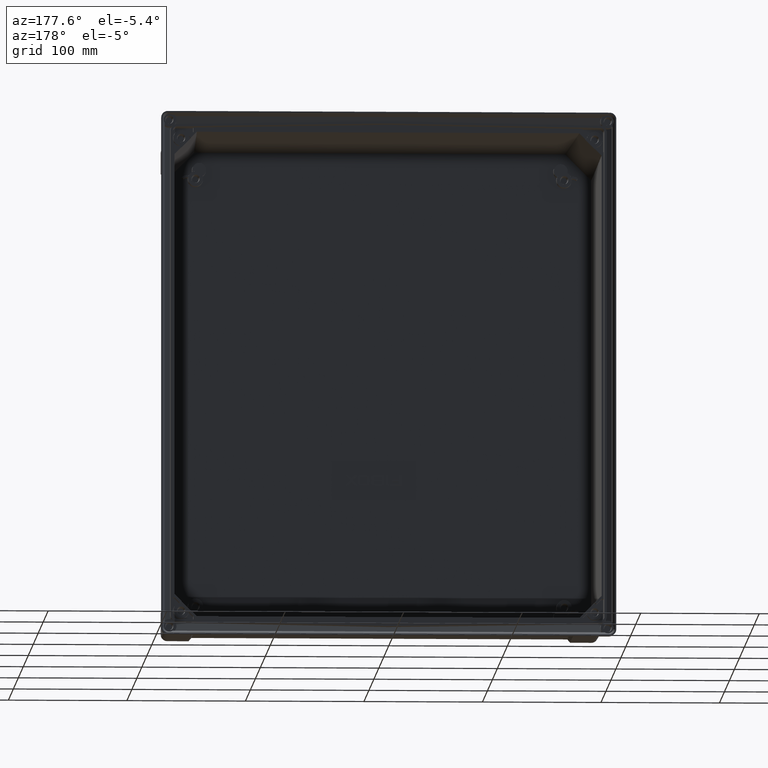
[diagram: clean part render]
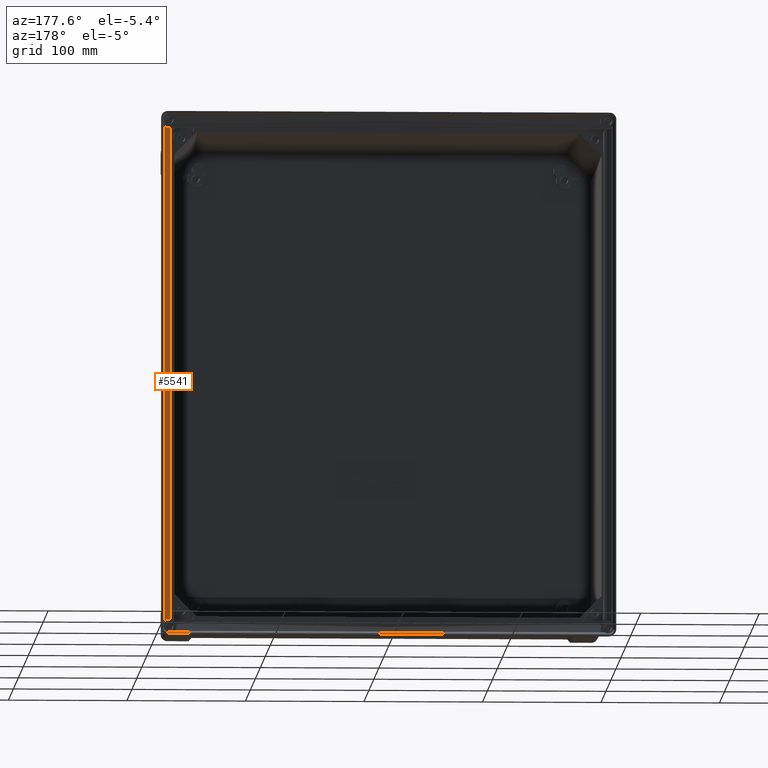
[diagram: same view with one face highlighted and labeled with its STEP entity id]
A machine part, auxiliary view. The second image highlights one B-rep face of the part: STEP entity #5541.
In plain terms, the highlighted planar face has unit normal (0.2079, -0.9781, 0).
Its self-contained STEP definition (entity closure, byte-faithful):
#12 = VERTEX_POINT ( 'NONE', #5347 ) ;
#164 = CARTESIAN_POINT ( 'NONE',  ( 183.6784476578796700, -11.57552123242162000, -208.4475658549101200 ) ) ;
#312 = FACE_OUTER_BOUND ( 'NONE', #13112, .T. ) ;
#379 = CARTESIAN_POINT ( 'NONE',  ( 184.0736057796017300, -11.49152778075239200, 206.2161834190592300 ) ) ;
#476 = CARTESIAN_POINT ( 'NONE',  ( 187.5705968354891700, -10.74821938572214800, 208.7290007013177400 ) ) ;
#754 = LINE ( 'NONE', #6106, #9139 ) ;
#808 = ORIENTED_EDGE ( 'NONE', *, *, #13375, .F. ) ;
#819 = CARTESIAN_POINT ( 'NONE',  ( 188.6307040684555100, -10.52288663728130700, -209.5135859337000000 ) ) ;
#862 = EDGE_CURVE ( 'NONE', #6049, #10314, #11887, .T. ) ;
#878 = VERTEX_POINT ( 'NONE', #6288 ) ;
#1033 =( BOUNDED_CURVE ( )  B_SPLINE_CURVE ( 3, ( #11333, #476, #3604, #7939 ),
 .UNSPECIFIED., .F., .F. ) 
 B_SPLINE_CURVE_WITH_KNOTS ( ( 4, 4 ),
 ( 4.075250826488545600, 4.708678783287671100 ),
 .UNSPECIFIED. ) 
 CURVE ( )  GEOMETRIC_REPRESENTATION_ITEM ( )  RATIONAL_B_SPLINE_CURVE ( ( 1.000000000000000000, 0.9668426425647878000, 0.9668426425647878000, 1.000000000000000000 ) ) 
 REPRESENTATION_ITEM ( '' )  );
#1295 =( BOUNDED_CURVE ( )  B_SPLINE_CURVE ( 3, ( #12556, #4839, #2631, #9271 ),
 .UNSPECIFIED., .F., .F. ) 
 B_SPLINE_CURVE_WITH_KNOTS ( ( 4, 4 ),
 ( 4.708678783287671100, 4.925476001306420500 ),
 .UNSPECIFIED. ) 
 CURVE ( )  GEOMETRIC_REPRESENTATION_ITEM ( )  RATIONAL_B_SPLINE_CURVE ( ( 1.000000000000000000, 0.9960870809245717700, 0.9960870809245717700, 1.000000000000000000 ) ) 
 REPRESENTATION_ITEM ( '' )  );
#1948 = CARTESIAN_POINT ( 'NONE',  ( 184.0736057796017600, -11.49152778075238700, -205.2077250463773900 ) ) ;
#1951 = CARTESIAN_POINT ( 'NONE',  ( 183.6784476578796700, -11.57552123242162000, -208.4475658549101200 ) ) ;
#2068 = ORIENTED_EDGE ( 'NONE', *, *, #862, .F. ) ;
#2292 = PLANE ( 'NONE',  #12566 ) ;
#2419 = CARTESIAN_POINT ( 'NONE',  ( 184.0736057796017100, -11.49152778075239700, 205.2077250463774800 ) ) ;
#2631 = CARTESIAN_POINT ( 'NONE',  ( 184.1130726446754400, -11.48313883961243500, 208.3535258928216600 ) ) ;
#2695 =( BOUNDED_CURVE ( )  B_SPLINE_CURVE ( 3, ( #11888, #5308, #4156, #1948 ),
 .UNSPECIFIED., .F., .F. ) 
 B_SPLINE_CURVE_WITH_KNOTS ( ( 4, 4 ),
 ( 2.556210124761200100, 3.099468997568247000 ),
 .UNSPECIFIED. ) 
 CURVE ( )  GEOMETRIC_REPRESENTATION_ITEM ( )  RATIONAL_B_SPLINE_CURVE ( ( 1.000000000000000000, 0.9755566634729153600, 0.9755566634729153600, 1.000000000000000000 ) ) 
 REPRESENTATION_ITEM ( '' )  );
#3404 = CARTESIAN_POINT ( 'NONE',  ( 190.6794624638448000, -10.08740959706477700, -220.9582404675457800 ) ) ;
#3604 = CARTESIAN_POINT ( 'NONE',  ( 186.3188577869561600, -11.01428473398642200, 208.3136011526006800 ) ) ;
#3789 = ORIENTED_EDGE ( 'NONE', *, *, #7867, .T. ) ;
#3829 = VERTEX_POINT ( 'NONE', #1951 ) ;
#3976 = VERTEX_POINT ( 'NONE', #10894 ) ;
#4039 = ORIENTED_EDGE ( 'NONE', *, *, #9320, .F. ) ;
#4156 = CARTESIAN_POINT ( 'NONE',  ( 184.0736057796017900, -11.49152778075237300, -206.2161834190591200 ) ) ;
#4200 = VECTOR ( 'NONE', #5184, 1000.000000000000000 ) ;
#4639 = ORIENTED_EDGE ( 'NONE', *, *, #5582, .F. ) ;
#4839 = CARTESIAN_POINT ( 'NONE',  ( 184.5553205724013400, -11.38913614068932400, 208.3070580969582900 ) ) ;
#4845 = DIRECTION ( 'NONE',  ( 0.2079116908177564600, -0.9781476007338063500, 0.0000000000000000000 ) ) ;
#4985 = VERTEX_POINT ( 'NONE', #10785 ) ;
#5184 = DIRECTION ( 'NONE',  ( 1.328265622643246300E-016, 2.823315737335354300E-017, -1.000000000000000000 ) ) ;
#5217 = VECTOR ( 'NONE', #6682, 999.9999999999998900 ) ;
#5308 = CARTESIAN_POINT ( 'NONE',  ( 183.8035355138278500, -11.54893298785458800, -207.1881387120790200 ) ) ;
#5347 = CARTESIAN_POINT ( 'NONE',  ( 183.2831992374567800, -11.65953387767221700, 208.0523174344872400 ) ) ;
#5533 = CARTESIAN_POINT ( 'NONE',  ( 184.9999999999999700, -11.29461661051356800, -208.3087079414944800 ) ) ;
#5541 = ADVANCED_FACE ( 'NONE', ( #312 ), #2292, .F. ) ;
#5582 = EDGE_CURVE ( 'NONE', #6847, #4985, #1033, .T. ) ;
#5596 = CARTESIAN_POINT ( 'NONE',  ( 184.0736057796017600, -11.49152778075238700, -205.2077250463773900 ) ) ;
#6049 = VERTEX_POINT ( 'NONE', #2419 ) ;
#6106 = CARTESIAN_POINT ( 'NONE',  ( 193.3734351314220700, -9.514788029611541000, -218.1425533284525200 ) ) ;
#6288 = CARTESIAN_POINT ( 'NONE',  ( 183.6784476578796700, -11.57552123242162200, 208.4475658549101200 ) ) ;
#6337 = VERTEX_POINT ( 'NONE', #12733 ) ;
#6428 =( BOUNDED_CURVE ( )  B_SPLINE_CURVE ( 3, ( #164, #9883, #14141, #5533 ),
 .UNSPECIFIED., .F., .F. ) 
 B_SPLINE_CURVE_WITH_KNOTS ( ( 4, 4 ),
 ( 1.357709305873166000, 1.574506523891915100 ),
 .UNSPECIFIED. ) 
 CURVE ( )  GEOMETRIC_REPRESENTATION_ITEM ( )  RATIONAL_B_SPLINE_CURVE ( ( 1.000000000000000000, 0.9960870809245717700, 0.9960870809245717700, 1.000000000000000000 ) ) 
 REPRESENTATION_ITEM ( '' )  );
#6541 = EDGE_CURVE ( 'NONE', #3829, #6337, #6428, .T. ) ;
#6682 = DIRECTION ( 'NONE',  ( -0.6992527780868756900, -0.1486307662483551400, -0.6992527780868756900 ) ) ;
#6831 = ORIENTED_EDGE ( 'NONE', *, *, #6541, .F. ) ;
#6835 = VERTEX_POINT ( 'NONE', #11845 ) ;
#6847 = VERTEX_POINT ( 'NONE', #12883 ) ;
#7091 = CARTESIAN_POINT ( 'NONE',  ( 183.2831992374567800, -11.65953387767221700, 208.0523174344872400 ) ) ;
#7191 = DIRECTION ( 'NONE',  ( 0.6992527780868756900, 0.1486307662483551400, -0.6992527780868756900 ) ) ;
#7237 = EDGE_CURVE ( 'NONE', #878, #12, #12875, .T. ) ;
#7321 = CARTESIAN_POINT ( 'NONE',  ( 184.0736057796017100, -11.49152778075239700, 214.9277636626389100 ) ) ;
#7867 = EDGE_CURVE ( 'NONE', #6049, #12, #8392, .T. ) ;
#7939 = CARTESIAN_POINT ( 'NONE',  ( 184.9999999999999700, -11.29461661051356800, 208.3087079414944800 ) ) ;
#8003 = EDGE_CURVE ( 'NONE', #6835, #10314, #2695, .T. ) ;
#8031 = CARTESIAN_POINT ( 'NONE',  ( 184.0736057796017100, -11.49152778075239700, 205.2077250463774800 ) ) ;
#8392 =( BOUNDED_CURVE ( )  B_SPLINE_CURVE ( 3, ( #8031, #379, #11325, #7091 ),
 .UNSPECIFIED., .F., .F. ) 
 B_SPLINE_CURVE_WITH_KNOTS ( ( 4, 4 ),
 ( 3.183716309611344100, 3.726975182418366600 ),
 .UNSPECIFIED. ) 
 CURVE ( )  GEOMETRIC_REPRESENTATION_ITEM ( )  RATIONAL_B_SPLINE_CURVE ( ( 1.000000000000000000, 0.9755566634729175800, 0.9755566634729175800, 1.000000000000000000 ) ) 
 REPRESENTATION_ITEM ( '' )  );
#8528 = CARTESIAN_POINT ( 'NONE',  ( 184.9999999999999700, -11.29461661051356800, -208.3087079414944800 ) ) ;
#8551 = ORIENTED_EDGE ( 'NONE', *, *, #12302, .F. ) ;
#9139 = VECTOR ( 'NONE', #7191, 999.9999999999998900 ) ;
#9271 = CARTESIAN_POINT ( 'NONE',  ( 183.6784476578796700, -11.57552123242162200, 208.4475658549101200 ) ) ;
#9320 = EDGE_CURVE ( 'NONE', #6337, #3976, #12218, .T. ) ;
#9395 = VECTOR ( 'NONE', #9496, 1000.000000000000000 ) ;
#9455 = CARTESIAN_POINT ( 'NONE',  ( 188.6307040684555100, -10.52288663728130700, -220.9582404675457800 ) ) ;
#9496 = DIRECTION ( 'NONE',  ( 0.0000000000000000000, 0.0000000000000000000, 1.000000000000000000 ) ) ;
#9573 = EDGE_CURVE ( 'NONE', #3976, #6847, #12303, .T. ) ;
#9636 = CARTESIAN_POINT ( 'NONE',  ( 187.5705968354892300, -10.74821938572214300, -208.7290007013178000 ) ) ;
#9883 = CARTESIAN_POINT ( 'NONE',  ( 184.1130726446754400, -11.48313883961243500, -208.3535258928216600 ) ) ;
#10314 = VERTEX_POINT ( 'NONE', #5596 ) ;
#10785 = CARTESIAN_POINT ( 'NONE',  ( 184.9999999999999700, -11.29461661051356800, 208.3087079414944800 ) ) ;
#10894 = CARTESIAN_POINT ( 'NONE',  ( 188.6307040684555100, -10.52288663728130700, -209.5135859337000000 ) ) ;
#11065 = CARTESIAN_POINT ( 'NONE',  ( 193.3734351314220700, -9.514788029611544600, 218.1425533284525200 ) ) ;
#11147 = ORIENTED_EDGE ( 'NONE', *, *, #8003, .T. ) ;
#11325 = CARTESIAN_POINT ( 'NONE',  ( 183.8035355138278200, -11.54893298785460600, 207.1881387120790000 ) ) ;
#11333 = CARTESIAN_POINT ( 'NONE',  ( 188.6307040684555100, -10.52288663728130700, 209.5135859336999700 ) ) ;
#11421 = DIRECTION ( 'NONE',  ( 0.9781476007338061300, 0.2079116908177564000, 0.0000000000000000000 ) ) ;
#11690 = CARTESIAN_POINT ( 'NONE',  ( 186.3188577869562200, -11.01428473398642000, -208.3136011526007100 ) ) ;
#11845 = CARTESIAN_POINT ( 'NONE',  ( 183.2831992374568400, -11.65953387767220100, -208.0523174344872900 ) ) ;
#11887 = LINE ( 'NONE', #7321, #4200 ) ;
#11888 = CARTESIAN_POINT ( 'NONE',  ( 183.2831992374568400, -11.65953387767220100, -208.0523174344872900 ) ) ;
#12218 =( BOUNDED_CURVE ( )  B_SPLINE_CURVE ( 3, ( #8528, #11690, #9636, #819 ),
 .UNSPECIFIED., .F., .F. ) 
 B_SPLINE_CURVE_WITH_KNOTS ( ( 4, 4 ),
 ( 1.574506523891915100, 2.207934480691044600 ),
 .UNSPECIFIED. ) 
 CURVE ( )  GEOMETRIC_REPRESENTATION_ITEM ( )  RATIONAL_B_SPLINE_CURVE ( ( 1.000000000000000000, 0.9668426425647873600, 0.9668426425647873600, 1.000000000000000000 ) ) 
 REPRESENTATION_ITEM ( '' )  );
#12223 = ORIENTED_EDGE ( 'NONE', *, *, #7237, .F. ) ;
#12302 = EDGE_CURVE ( 'NONE', #4985, #878, #1295, .T. ) ;
#12303 = LINE ( 'NONE', #9455, #9395 ) ;
#12556 = CARTESIAN_POINT ( 'NONE',  ( 184.9999999999999700, -11.29461661051356800, 208.3087079414944800 ) ) ;
#12566 = AXIS2_PLACEMENT_3D ( 'NONE', #3404, #4845, #11421 ) ;
#12733 = CARTESIAN_POINT ( 'NONE',  ( 184.9999999999999700, -11.29461661051356800, -208.3087079414944800 ) ) ;
#12875 = LINE ( 'NONE', #11065, #5217 ) ;
#12883 = CARTESIAN_POINT ( 'NONE',  ( 188.6307040684555100, -10.52288663728130700, 209.5135859336999700 ) ) ;
#13112 = EDGE_LOOP ( 'NONE', ( #4639, #13432, #4039, #6831, #808, #11147, #2068, #3789, #12223, #8551 ) ) ;
#13375 = EDGE_CURVE ( 'NONE', #6835, #3829, #754, .T. ) ;
#13432 = ORIENTED_EDGE ( 'NONE', *, *, #9573, .F. ) ;
#14141 = CARTESIAN_POINT ( 'NONE',  ( 184.5553205724013400, -11.38913614068932400, -208.3070580969582900 ) ) ;